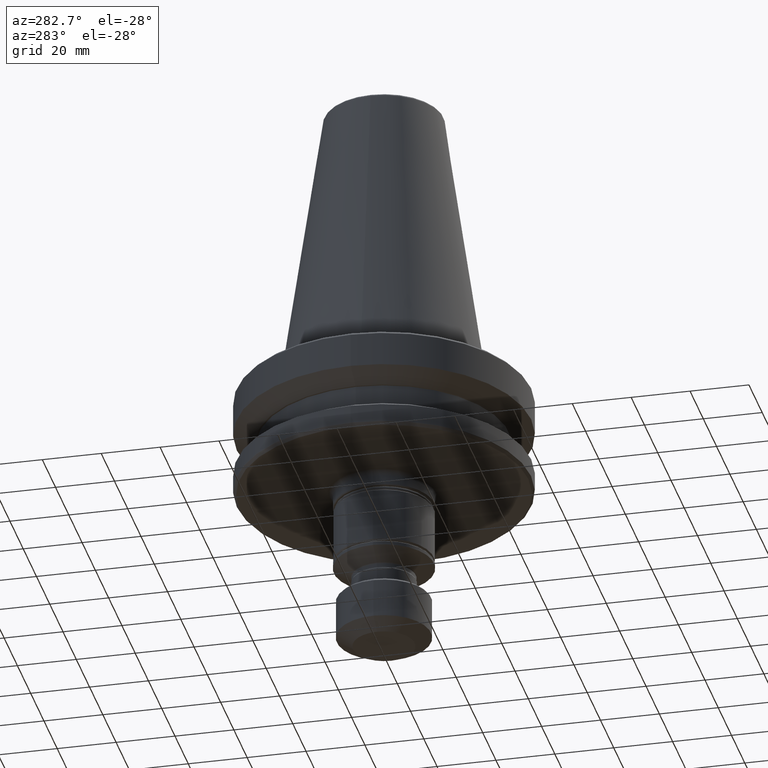
[diagram: clean part render]
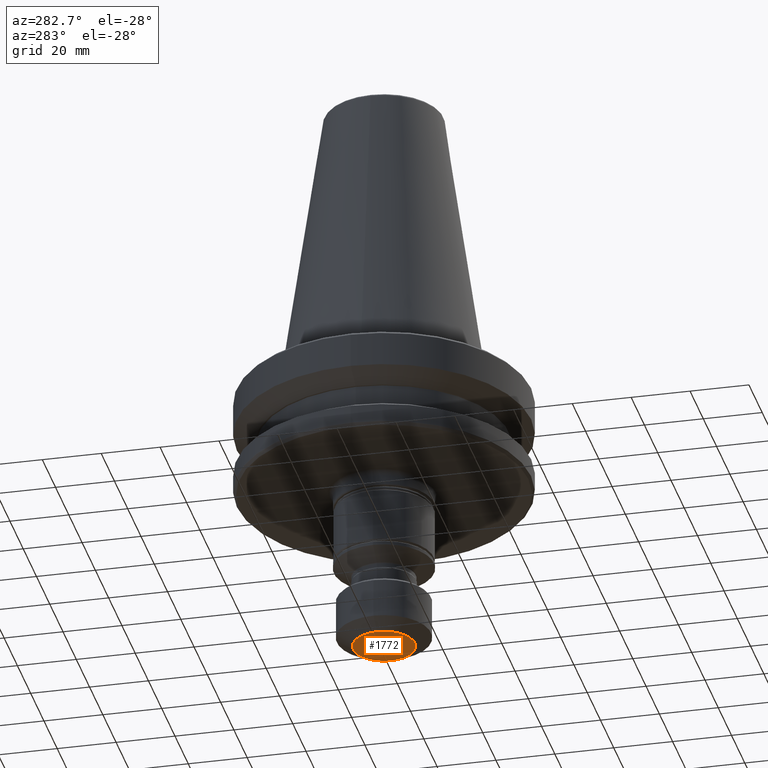
[diagram: same view with one face highlighted and labeled with its STEP entity id]
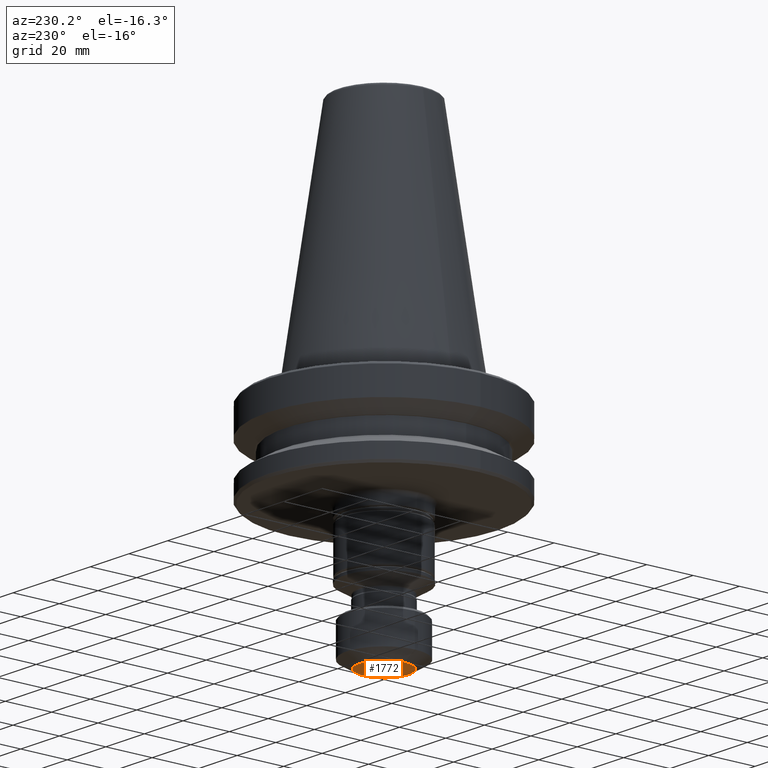
[diagram: same view with one face highlighted and labeled with its STEP entity id]
A machine part, auxiliary view. The second image highlights one B-rep face of the part: STEP entity #1772.
A second angle (auxiliary view) of the same face is appended — the face is thin or edge-on in the first view.
In plain terms, the highlighted planar face has unit normal (-0, 0, -1).
Its self-contained STEP definition (entity closure, byte-faithful):
#89 = DIRECTION ( 'NONE',  ( -1.000000000000000000, 0.0000000000000000000, 0.0000000000000000000 ) ) ;
#176 = CIRCLE ( 'NONE', #2061, 10.49999999999772400 ) ;
#225 = PLANE ( 'NONE',  #1312 ) ;
#384 = EDGE_LOOP ( 'NONE', ( #826, #1452 ) ) ;
#525 = VERTEX_POINT ( 'NONE', #997 ) ;
#663 = CARTESIAN_POINT ( 'NONE',  ( 10.49999999999772400, 0.0000000000000000000, -95.00000000000000000 ) ) ;
#704 = DIRECTION ( 'NONE',  ( -0.0000000000000000000, 0.0000000000000000000, -1.000000000000000000 ) ) ;
#770 = VERTEX_POINT ( 'NONE', #663 ) ;
#826 = ORIENTED_EDGE ( 'NONE', *, *, #1385, .T. ) ;
#855 = CARTESIAN_POINT ( 'NONE',  ( 0.0000000000000000000, 0.0000000000000000000, -95.00000000000000000 ) ) ;
#864 = DIRECTION ( 'NONE',  ( -0.0000000000000000000, -0.0000000000000000000, -1.000000000000000000 ) ) ;
#944 = AXIS2_PLACEMENT_3D ( 'NONE', #2088, #1067, #89 ) ;
#985 = FACE_OUTER_BOUND ( 'NONE', #384, .T. ) ;
#997 = CARTESIAN_POINT ( 'NONE',  ( -10.49999999999772400, 1.622657008869941300E-015, -95.00000000000000000 ) ) ;
#1067 = DIRECTION ( 'NONE',  ( -0.0000000000000000000, -0.0000000000000000000, -1.000000000000000000 ) ) ;
#1138 = EDGE_CURVE ( 'NONE', #525, #770, #176, .T. ) ;
#1312 = AXIS2_PLACEMENT_3D ( 'NONE', #855, #704, #1892 ) ;
#1385 = EDGE_CURVE ( 'NONE', #770, #525, #1893, .T. ) ;
#1452 = ORIENTED_EDGE ( 'NONE', *, *, #1138, .T. ) ;
#1772 = ADVANCED_FACE ( 'NONE', ( #985 ), #225, .T. ) ;
#1892 = DIRECTION ( 'NONE',  ( -1.000000000000000000, 0.0000000000000000000, 0.0000000000000000000 ) ) ;
#1893 = CIRCLE ( 'NONE', #944, 10.49999999999772400 ) ;
#1894 = CARTESIAN_POINT ( 'NONE',  ( 0.0000000000000000000, 0.0000000000000000000, -95.00000000000000000 ) ) ;
#2058 = DIRECTION ( 'NONE',  ( -1.000000000000000000, 0.0000000000000000000, 0.0000000000000000000 ) ) ;
#2061 = AXIS2_PLACEMENT_3D ( 'NONE', #1894, #864, #2058 ) ;
#2088 = CARTESIAN_POINT ( 'NONE',  ( 0.0000000000000000000, 0.0000000000000000000, -95.00000000000000000 ) ) ;